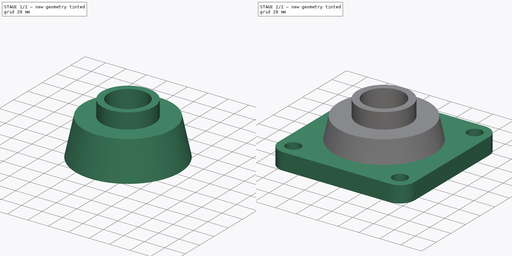
[diagram: build sequence overview — one tinted view per stage of 2, left to right]
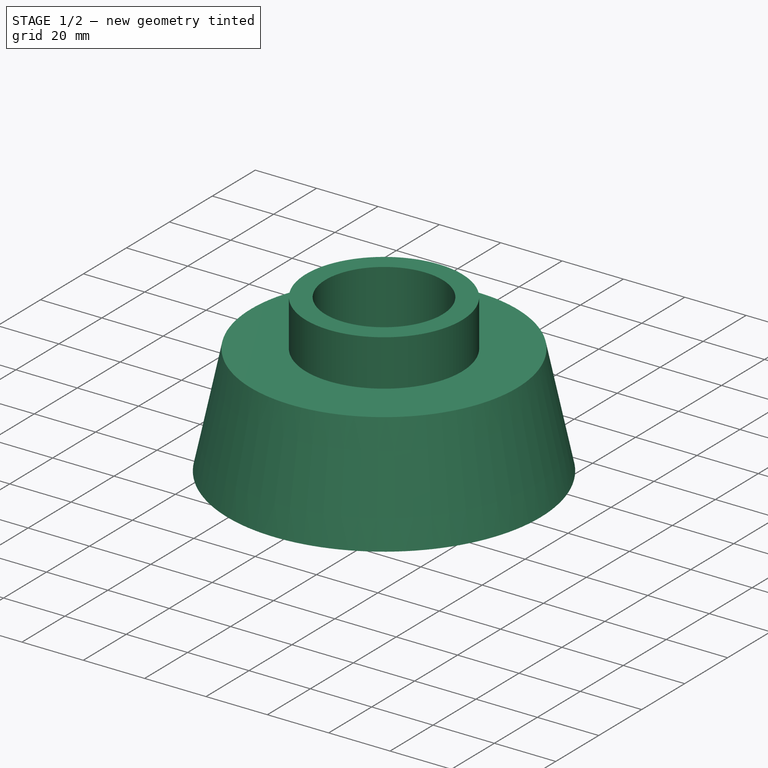
[diagram: stage 1 of 2 — iso view after this stage's code; geometry added in this stage tinted green]
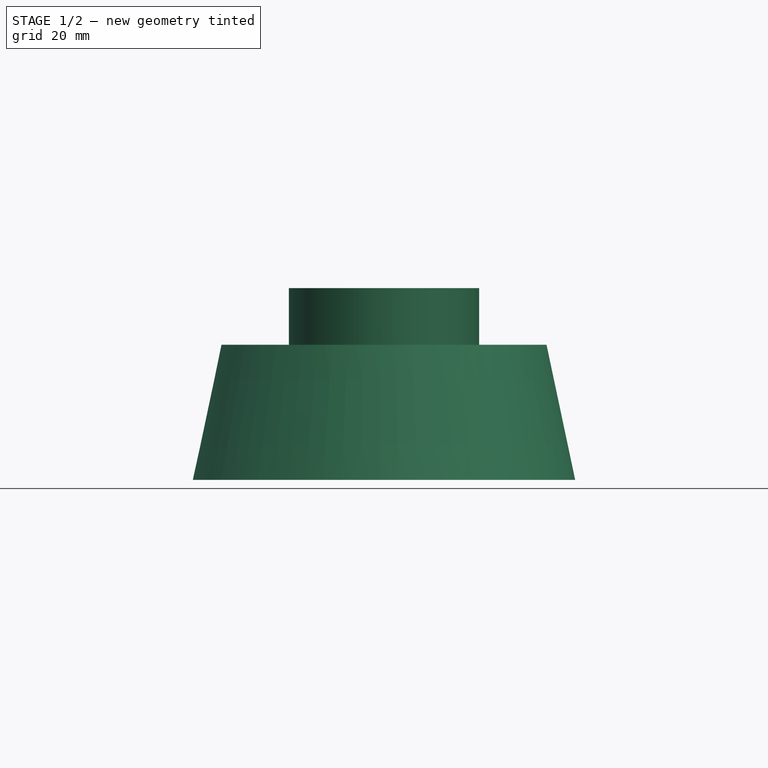
[diagram: stage 1 of 2 — front view after this stage's code; geometry added in this stage tinted green]
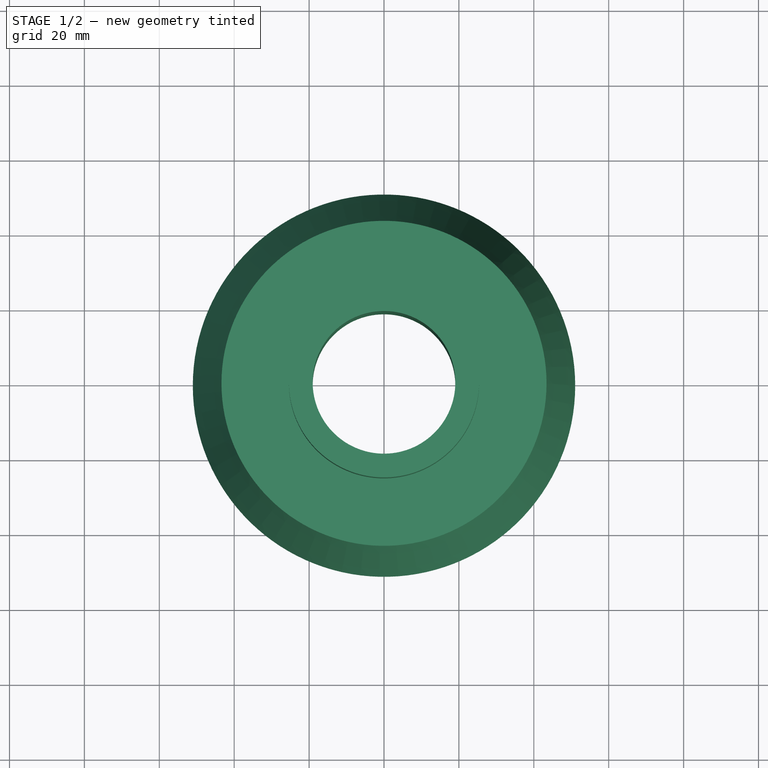
[diagram: stage 1 of 2 — top view after this stage's code; geometry added in this stage tinted green]
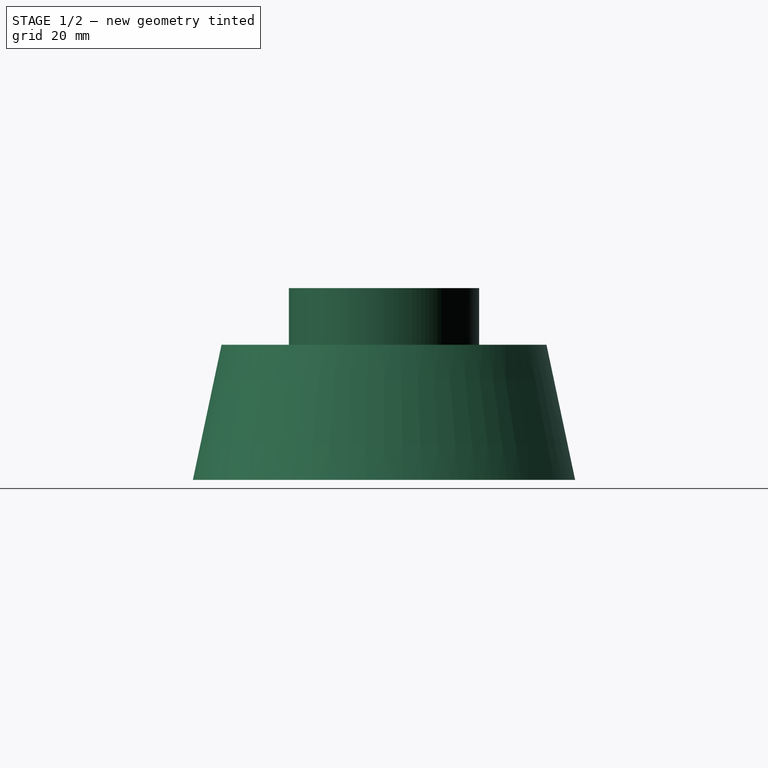
[diagram: stage 1 of 2 — right view after this stage's code; geometry added in this stage tinted green]
FCSTD DOCUMENT  (FreeCAD 0.20R29410 (Git))
Label: PillowBlock
License: All rights reserved
LicenseURL: http://en.wikipedia.org/wiki/All_rights_reserved
objects: Sketcher::SketchObject×2, PartDesign::CoordinateSystem×1, PartDesign::Revolution×1, PartDesign::Pad×1, PartDesign::Body×1
note: 8 computed .brp shape members not serialized (recipe doc carries the construction recipe); baked Part::Feature solids carry a one-line shape summary decoded from their .brp

FEATURE [PartDesign::CoordinateSystem] LCS_0
  AttacherType = Attacher::AttachEngine3D
  MapMode = 2
  Support = -> [X_Axis]
FEATURE [Sketcher::SketchObject] Sketch
  FullyConstrained = true
  MapMode = 5
  Placement = pos=(0,0,0) rot=(1,0,0;1.5708rad)
  Support = -> [XZ_Plane]
  sketch-geometry (6):
    g0: LineSegment StartX=19.05 StartY=0 StartZ=0 EndX=19.05 EndY=51.2064 EndZ=0
    g1: LineSegment StartX=43.4 StartY=36.068 StartZ=0 EndX=51.05 EndY=0 EndZ=0
    g2: LineSegment StartX=51.05 StartY=0 StartZ=0 EndX=19.05 EndY=0 EndZ=0
    g3: LineSegment StartX=43.4 StartY=36.068 StartZ=0 EndX=25.4 EndY=36.068 EndZ=0
    g4: LineSegment StartX=25.4 StartY=36.068 StartZ=0 EndX=25.4 EndY=51.2064 EndZ=0
    g5: LineSegment StartX=25.4 StartY=51.2064 StartZ=0 EndX=19.05 EndY=51.2064 EndZ=0
  constraints (18):
    c: PointOnObject(g0,g-1)
    c: Vertical(g0)
    c: PointOnObject(g2,g-1)
    c: Coincident(g2,g0)
    c: Coincident(g1,g2)
    c: DistanceX(g-1,g0) = 19.05  'ShaftRadius'
    c: Coincident(g1,g3)
    c: Horizontal(g3)
    c: Coincident(g3,g4)
    c: Vertical(g4)
    c: Coincident(g4,g5)
    c: Horizontal(g5)
    c: Coincident(g5,g0)
    c: DistanceY(g1,g1) = 36.068
    c: DistanceY(g1,g4) = 51.2064
    c: DistanceX(g5,g5) = 6.35
    c: DistanceX(g3,g3) = 18
    c: DistanceX(g2,g2) = 32
FEATURE [PartDesign::Revolution] Revolution
  Angle = 360
  Axis = (0,-2e-16,1)
  Base = (0,0,0)
  Placement = pos=(0,0,0) rot=(1,0,0;1.5708rad)
  Profile = -> Sketch
  ReferenceAxis = -> Sketch [V_Axis]
  Reversed = true
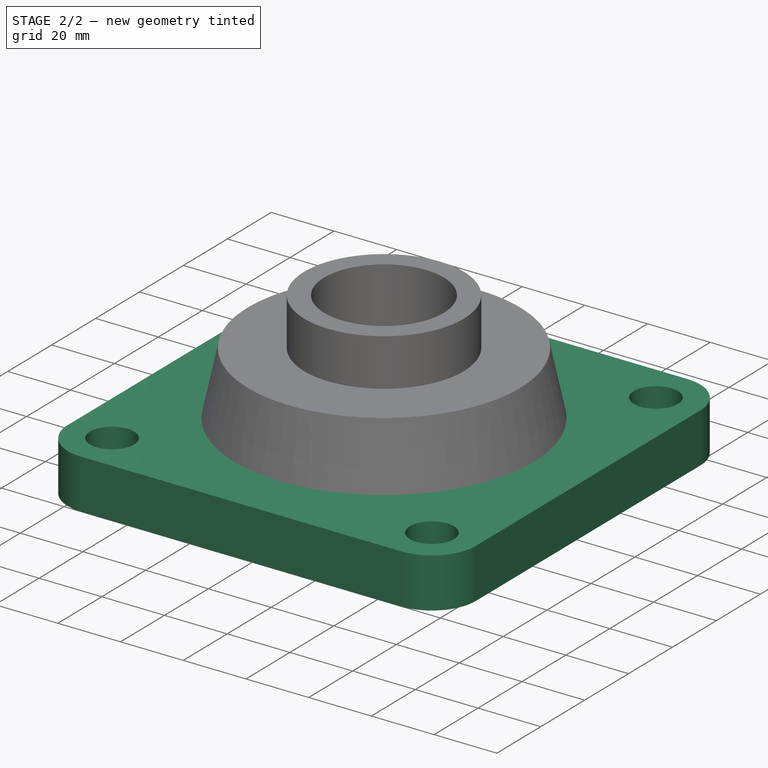
[diagram: stage 2 of 2 — iso view after this stage's code; geometry added in this stage tinted green]
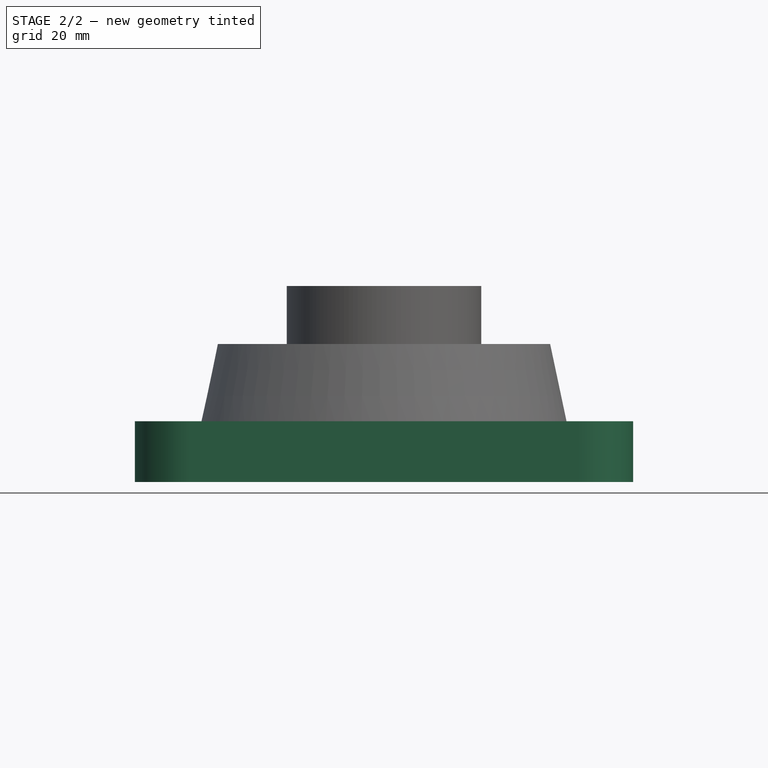
[diagram: stage 2 of 2 — front view after this stage's code; geometry added in this stage tinted green]
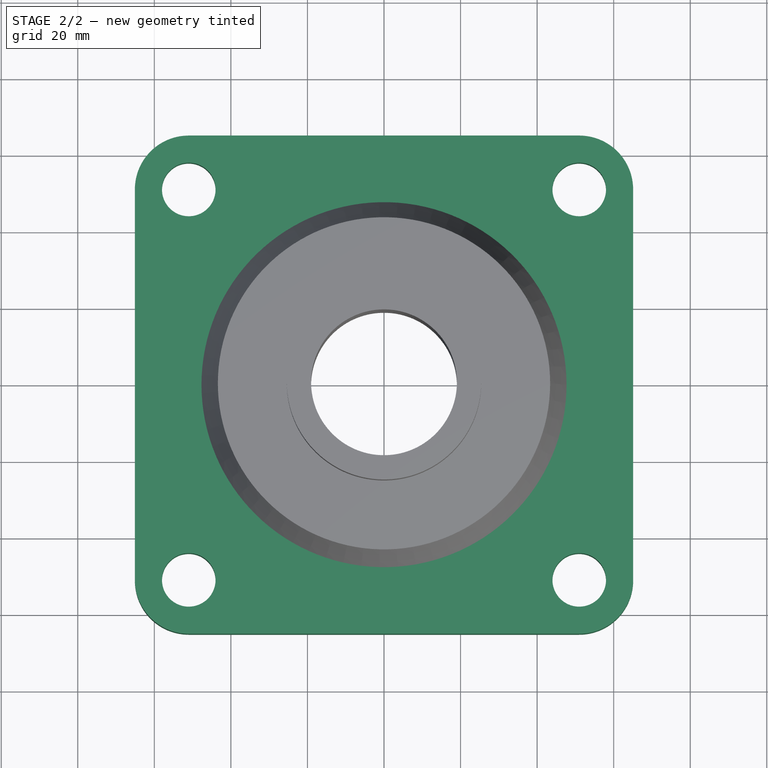
[diagram: stage 2 of 2 — top view after this stage's code; geometry added in this stage tinted green]
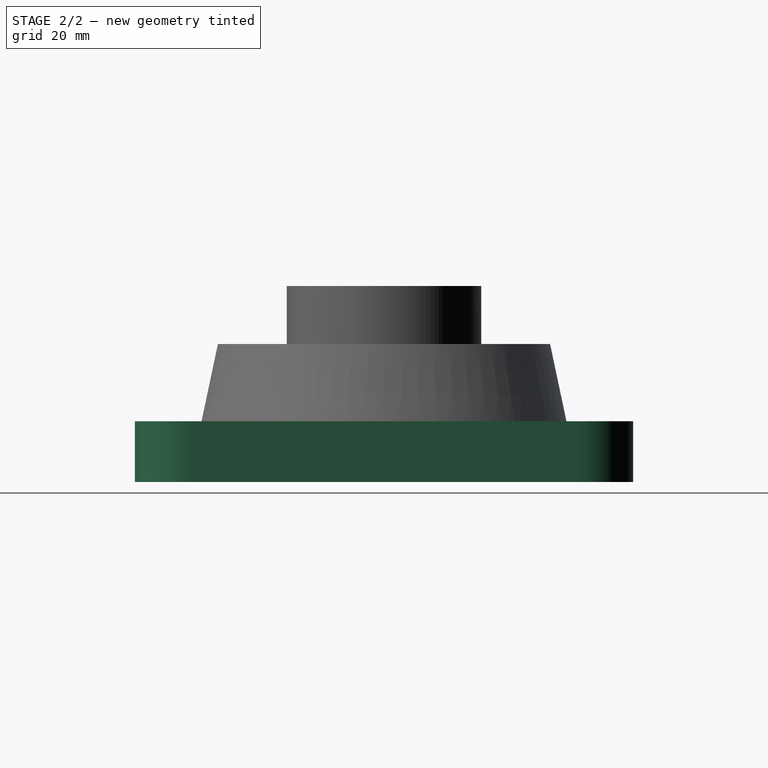
[diagram: stage 2 of 2 — right view after this stage's code; geometry added in this stage tinted green]
FEATURE [Sketcher::SketchObject] Sketch001
  FullyConstrained = true
  MapMode = 5
  Support = -> [XY_Plane]
  expr: Constraints[32] = <<Sketch>>.Constraints.ShaftRadius
  sketch-geometry (15):
    g0: ArcOfCircle CenterX=-51.0032 CenterY=51.0032 CenterZ=0 NormalX=0 NormalY=0 NormalZ=1 AngleXU=0 Radius=14.0843 StartAngle=1.5708 EndAngle=3.14159
    g1: LineSegment StartX=-51.0032 StartY=65.0875 StartZ=0 EndX=51.0032 EndY=65.0875 EndZ=0
    g2: ArcOfCircle CenterX=51.0032 CenterY=51.0032 CenterZ=0 NormalX=0 NormalY=0 NormalZ=1 AngleXU=0 Radius=14.0843 StartAngle=3e-16 EndAngle=1.5708
    g3: LineSegment StartX=65.0875 StartY=51.0032 StartZ=0 EndX=65.0875 EndY=-51.0032 EndZ=0
    g4: ArcOfCircle CenterX=51.0032 CenterY=-51.0032 CenterZ=0 NormalX=0 NormalY=0 NormalZ=1 AngleXU=0 Radius=14.0843 StartAngle=4.71239 EndAngle=6.28319
    g5: LineSegment StartX=51.0032 StartY=-65.0875 StartZ=0 EndX=-51.0032 EndY=-65.0875 EndZ=0
    g6: ArcOfCircle CenterX=-51.0032 CenterY=-51.0032 CenterZ=0 NormalX=0 NormalY=0 NormalZ=1 AngleXU=0 Radius=14.0843 StartAngle=3.14159 EndAngle=4.71239
    g7: LineSegment StartX=-65.0875 StartY=-51.0032 StartZ=0 EndX=-65.0875 EndY=51.0032 EndZ=0
    g8: GeomPoint X=-65.0875 Y=65.0875 Z=0
    g9: GeomPoint X=65.0875 Y=-65.0875 Z=0
    g10: Circle CenterX=51.0032 CenterY=51.0032 CenterZ=0 NormalX=0 NormalY=0 NormalZ=1 AngleXU=0 Radius=7
    g11: Circle CenterX=-51.0032 CenterY=51.0032 CenterZ=0 NormalX=0 NormalY=0 NormalZ=1 AngleXU=0 Radius=7
    g12: Circle CenterX=-51.0032 CenterY=-51.0032 CenterZ=0 NormalX=0 NormalY=0 NormalZ=1 AngleXU=0 Radius=7
    g13: Circle CenterX=51.0032 CenterY=-51.0032 CenterZ=0 NormalX=0 NormalY=0 NormalZ=1 AngleXU=0 Radius=7
    g14: Circle CenterX=0 CenterY=0 CenterZ=0 NormalX=0 NormalY=0 NormalZ=1 AngleXU=0 Radius=19.05
  constraints (33):
    c: Tangent(g0,g1) = 1.5708
    c: Tangent(g1,g2) = 1.5708
    c: Tangent(g2,g3) = 1.5708
    c: Tangent(g3,g4) = 1.5708
    c: Tangent(g4,g5) = 1.5708
    c: Tangent(g5,g6) = 1.5708
    c: Tangent(g6,g7) = 1.5708
    c: Tangent(g7,g0) = 1.5708
    c: Horizontal(g1)
    c: Horizontal(g5)
    c: Vertical(g3)
    c: Vertical(g7)
    c: Equal(g0,g2)
    c: Equal(g2,g4)
    c: Equal(g4,g6)
    c: PointOnObject(g8,g1)
    c: PointOnObject(g8,g7)
    c: PointOnObject(g9,g3)
    c: PointOnObject(g9,g5)
    c: Equal(g1,g3)
    c: Symmetric(g2,g6,g-1)
    c: DistanceY(g4,g2) = 102.006
    c: Coincident(g10,g2)
    c: Coincident(g11,g0)
    c: Coincident(g12,g6)
    c: Coincident(g13,g4)
    c: Equal(g13,g12)
    c: Equal(g12,g11)
    c: Equal(g11,g10)
    c: Diameter(g10) = 14
    c: DistanceY(g4,g1) = 130.175
    c: Coincident(g14,g-1)
    c: Radius(g14) = 19.05
FEATURE [PartDesign::Pad] Pad
  BaseFeature = -> Revolution
  Direction = (0,0,1)
  Length = 15.875
  Length2 = 10
  Placement = pos=(0,0,0) rot=(1,0,0;1.5708rad)
  Profile = -> Sketch001
  ReferenceAxis = -> Sketch001 [N_Axis]
  Type = 0
FEATURE [PartDesign::Body] Body
  Group = -> [LCS_0,Sketch,Revolution,Sketch001,Pad]
  Origin = -> Origin
  Tip = -> Pad
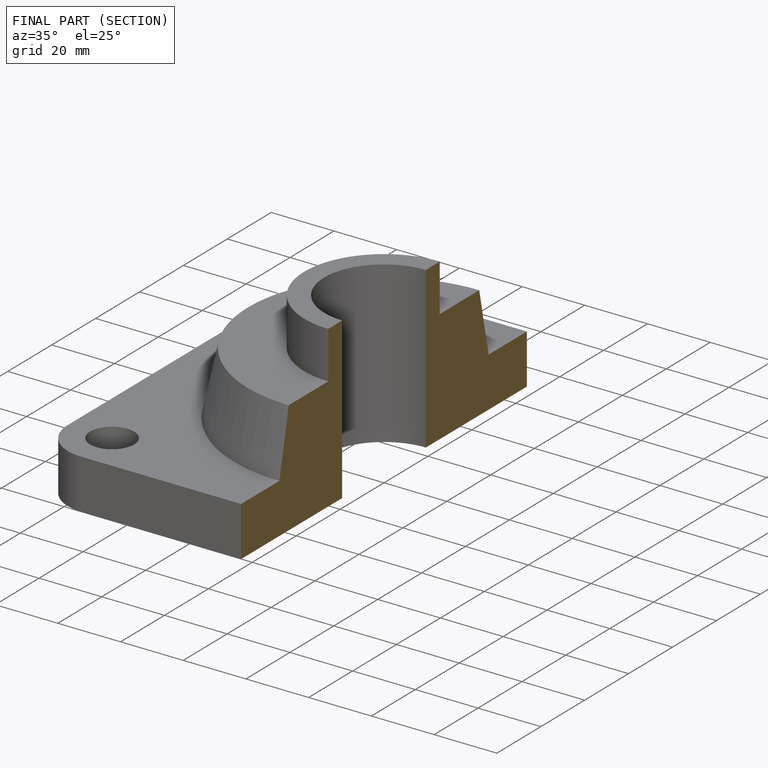
[diagram: finished part — half-section view (interior)]
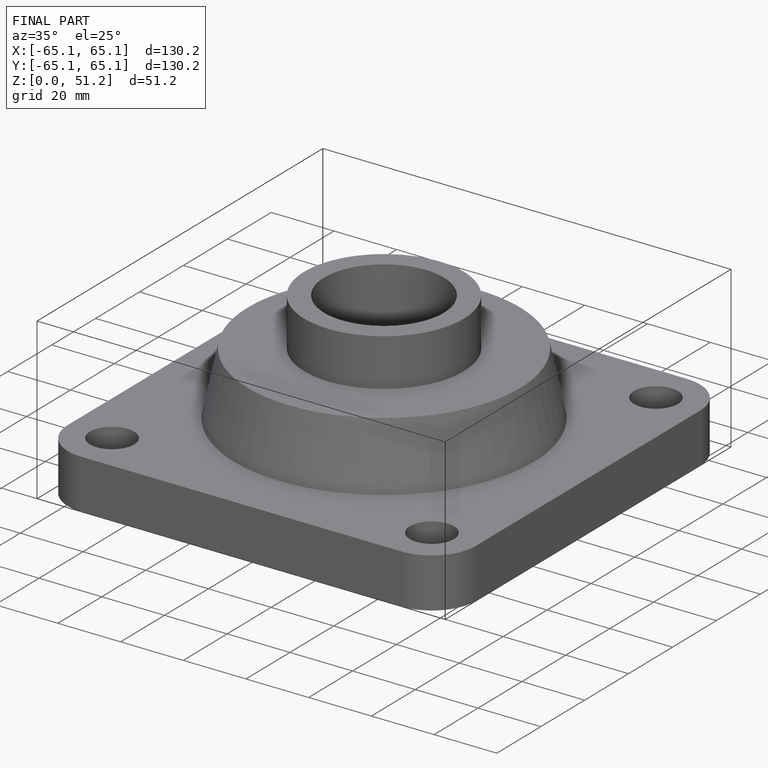
[diagram: finished part — iso view with bounding-box wireframe]
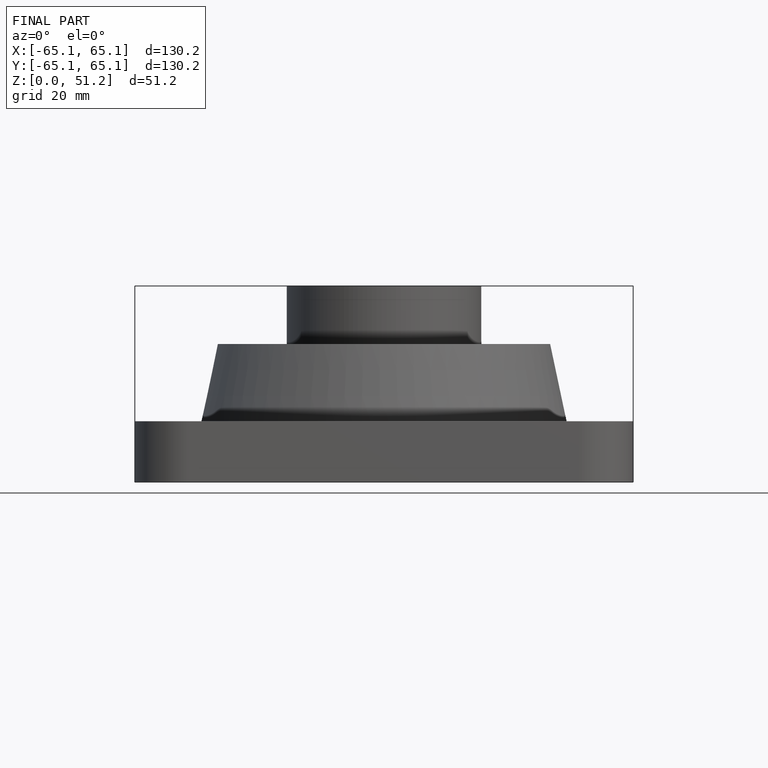
[diagram: finished part — front view with bounding-box wireframe]
